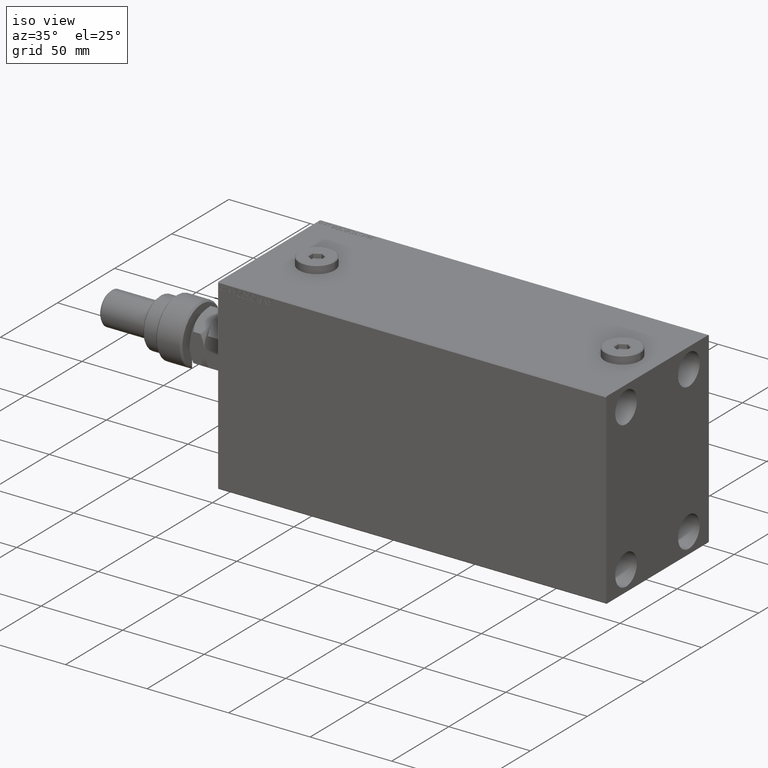
[diagram: clean part render]
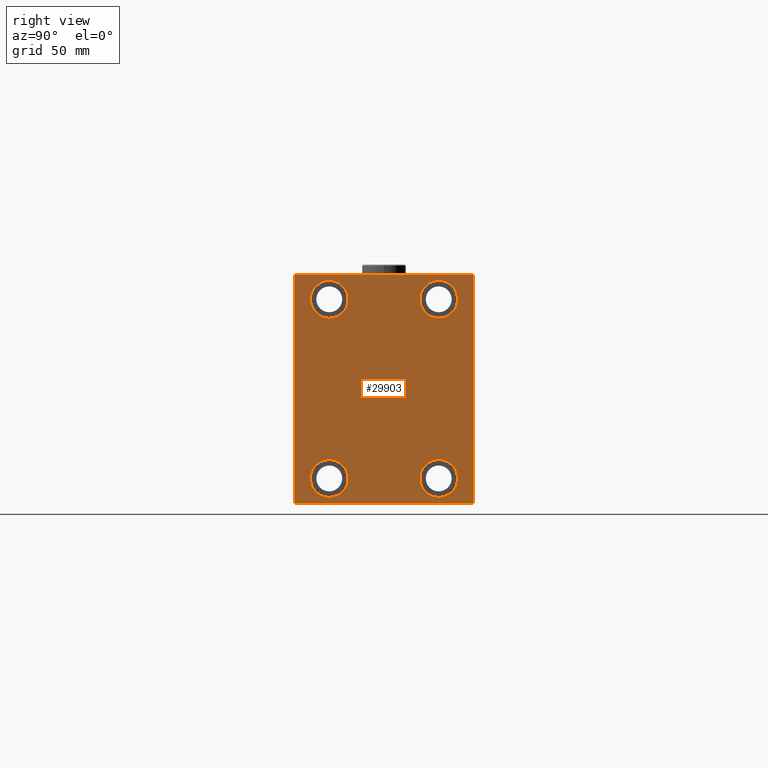
[diagram: tour spotlight — one face highlighted and labeled with its STEP entity id]
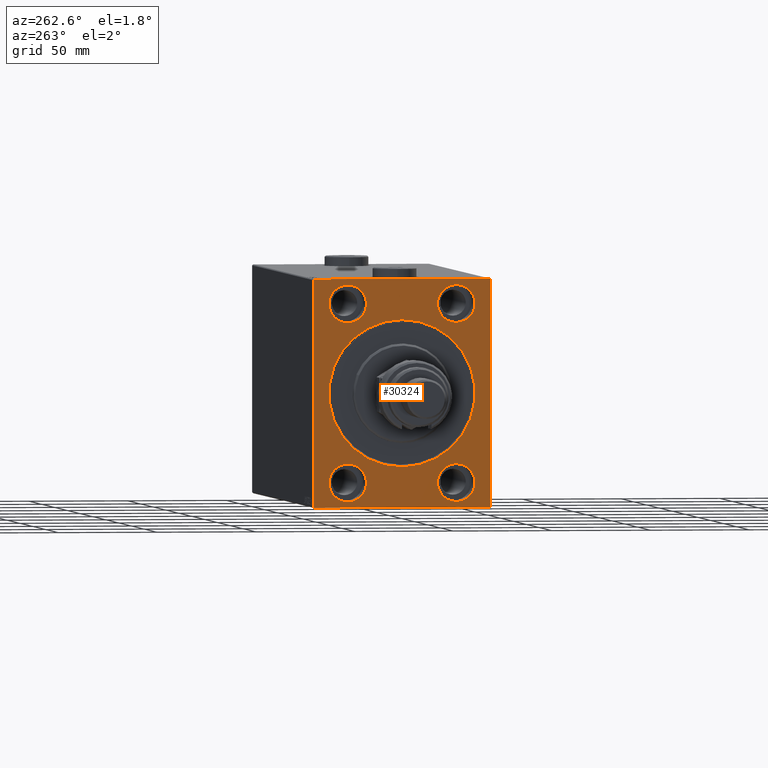
[diagram: tour spotlight — one face highlighted and labeled with its STEP entity id]
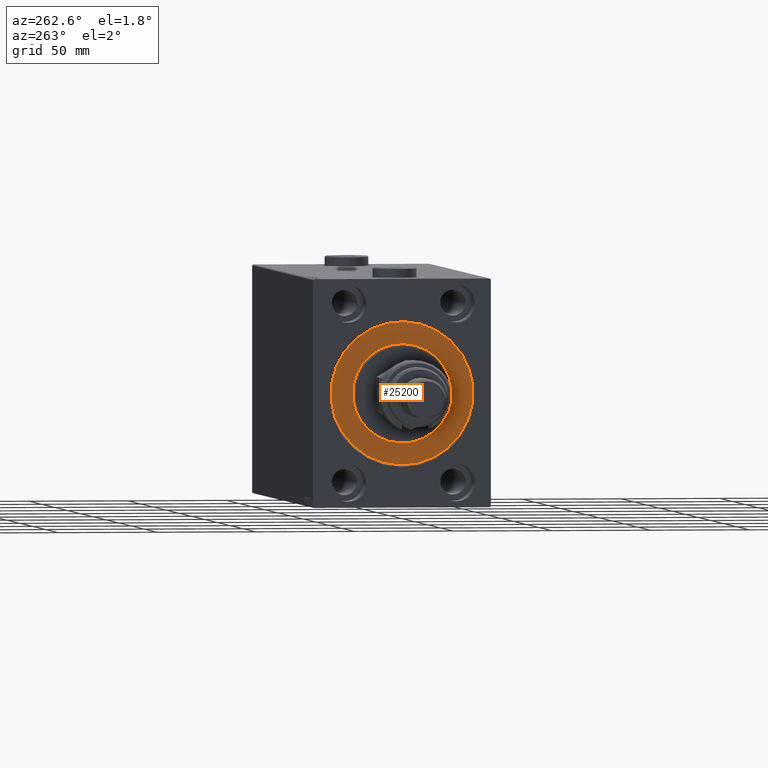
[diagram: tour spotlight — one face highlighted and labeled with its STEP entity id]
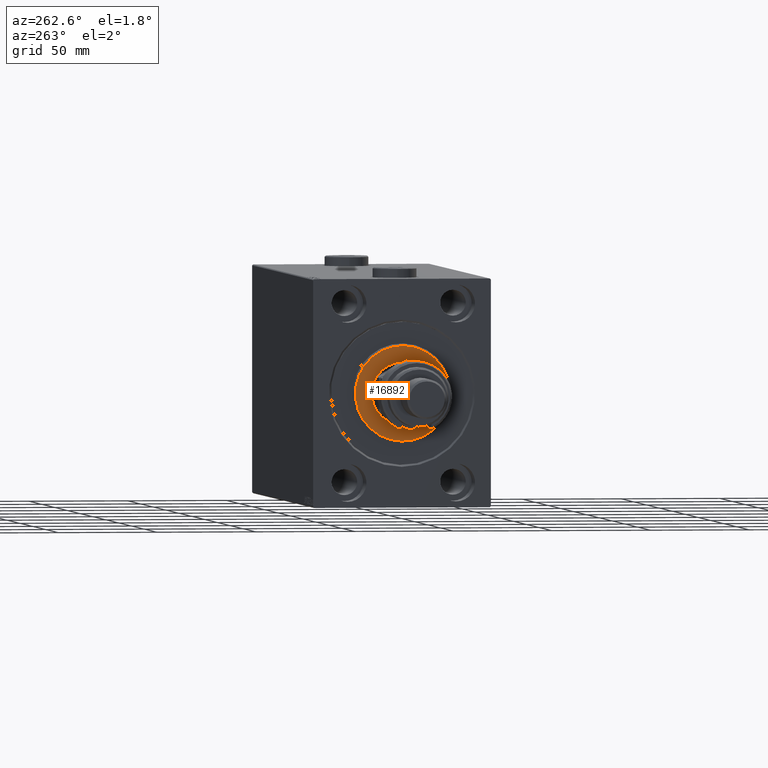
[diagram: tour spotlight — one face highlighted and labeled with its STEP entity id]
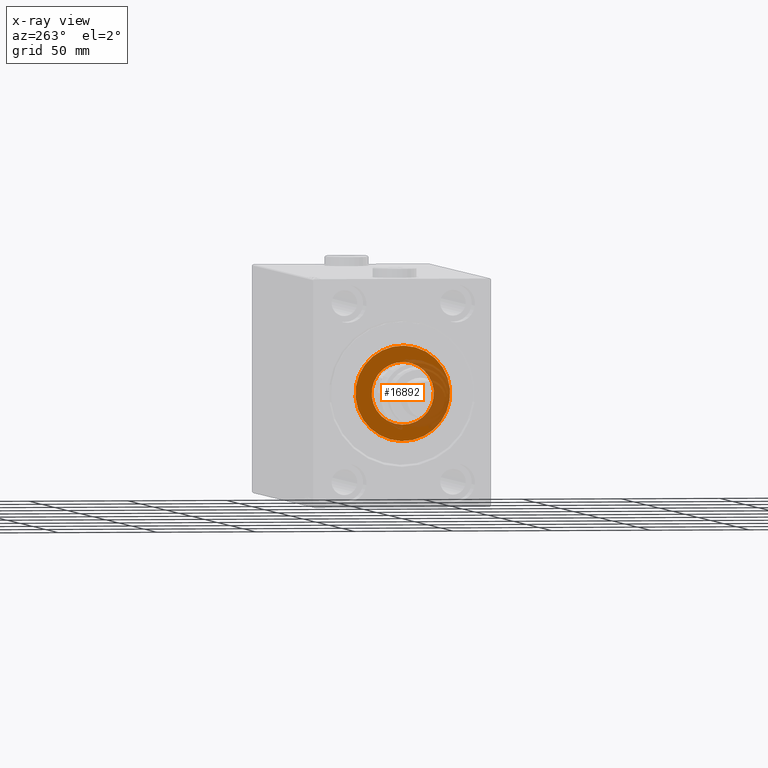
[diagram: x-ray of the same camera — body ghosted, this tour face saturated]
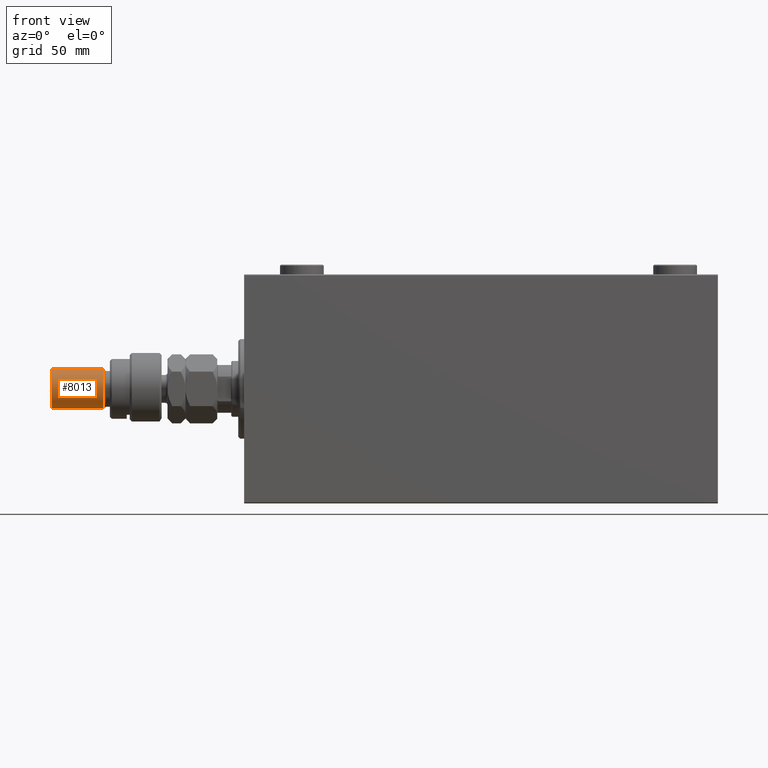
[diagram: tour spotlight — one face highlighted and labeled with its STEP entity id]
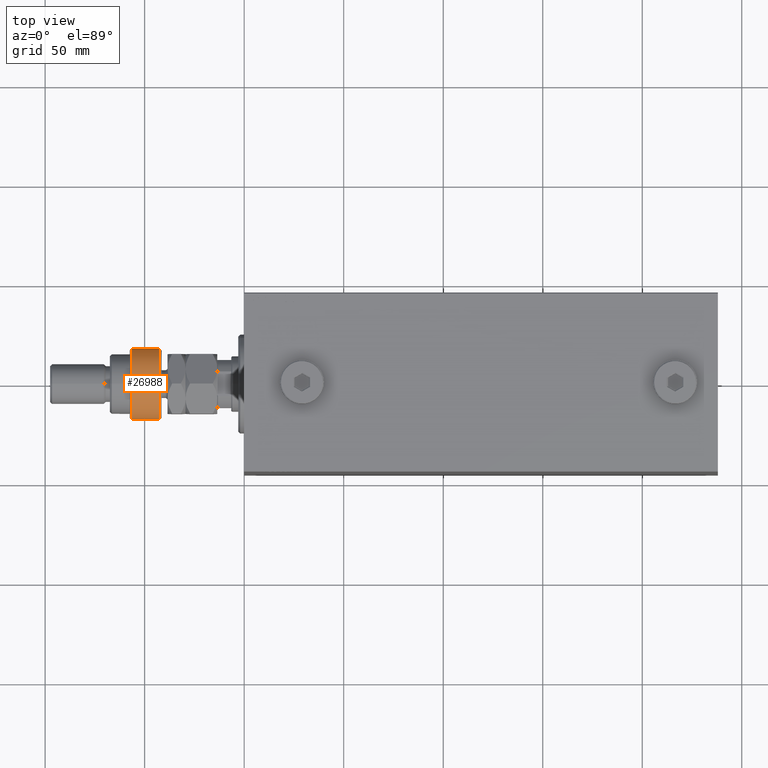
[diagram: tour spotlight — one face highlighted and labeled with its STEP entity id]
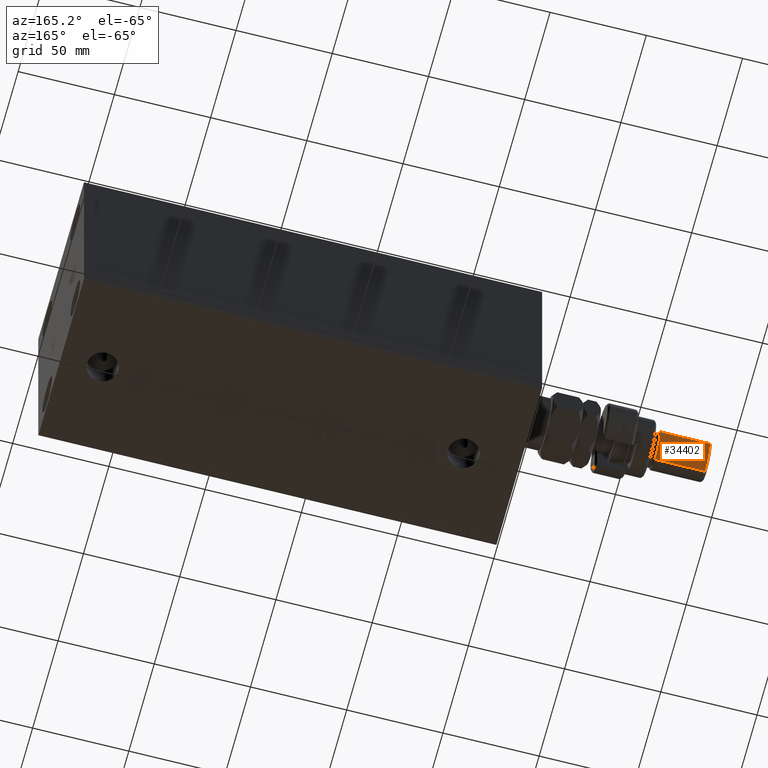
[diagram: tour spotlight — one face highlighted and labeled with its STEP entity id]
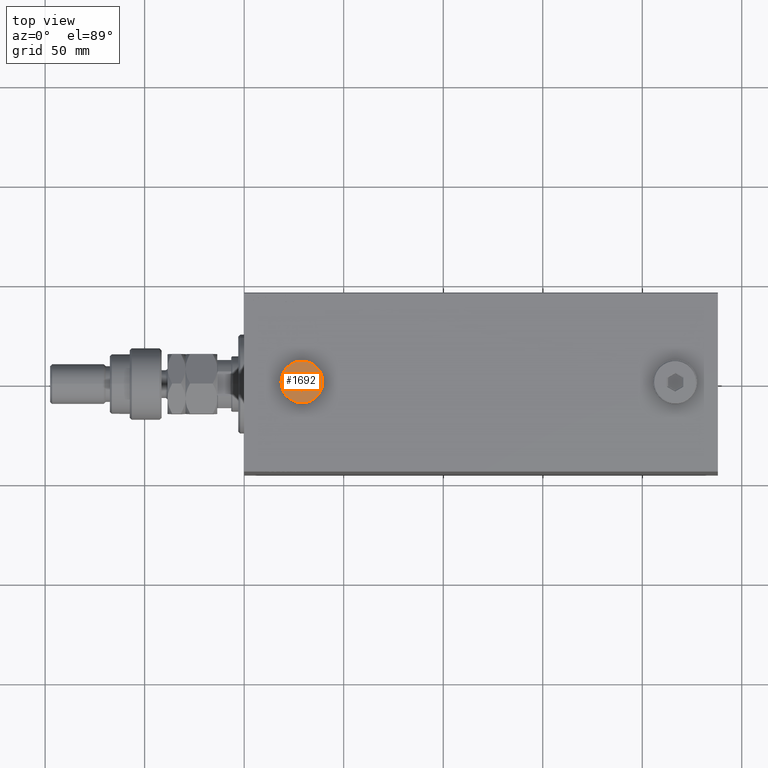
[diagram: tour spotlight — one face highlighted and labeled with its STEP entity id]
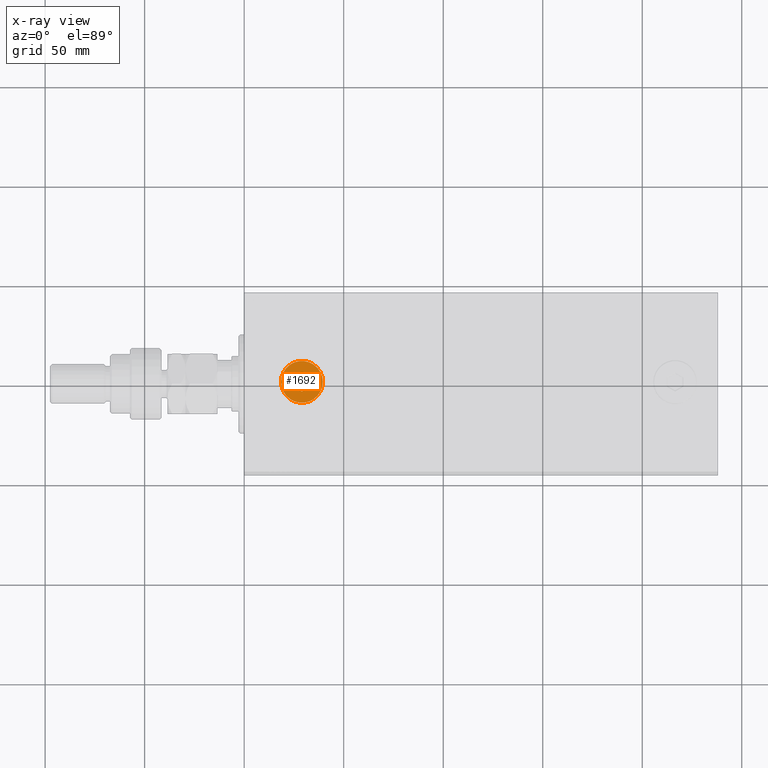
[diagram: x-ray of the same camera — body ghosted, this tour face saturated]
A machine part: a face-by-face anatomy tour. The part has 1004 B-rep faces; the first image is the clean iso view, then the 8 largest visible faces are spotlighted one at a time (largest first), each with its STEP entity span.

Face 1 — right view, entity #29903. In plain terms, the highlighted planar face has unit normal (1, 0, 0).
Definition (entity closure, byte-faithful):
#257 = VECTOR ( 'NONE', #44630, 1000.000000000000114 ) ;
#315 = CARTESIAN_POINT ( 'NONE',  ( 238.0000000000000000, 51.00000000000002842, 51.00000000000002842 ) ) ;
#330 = ORIENTED_EDGE ( 'NONE', *, *, #13280, .T. ) ;
#543 = CIRCLE ( 'NONE', #10648, 9.500000000000001776 ) ;
#624 = VERTEX_POINT ( 'NONE', #44320 ) ;
#719 = FACE_BOUND ( 'NONE', #31853, .T. ) ;
#1183 = CARTESIAN_POINT ( 'NONE',  ( 238.0000000000000000, 27.49999999999998934, -44.99999999999998579 ) ) ;
#1581 = EDGE_CURVE ( 'NONE', #624, #34737, #4622, .T. ) ;
#2472 = DIRECTION ( 'NONE',  ( 0.000000000000000000, 0.000000000000000000, 1.000000000000000000 ) ) ;
#3330 = DIRECTION ( 'NONE',  ( -1.000000000000000000, -0.000000000000000000, -0.000000000000000000 ) ) ;
#3573 = VECTOR ( 'NONE', #19306, 1000.000000000000000 ) ;
#3862 = ORIENTED_EDGE ( 'NONE', *, *, #24793, .T. ) ;
#3907 = DIRECTION ( 'NONE',  ( 0.000000000000000000, 0.000000000000000000, -1.000000000000000000 ) ) ;
#4091 = ORIENTED_EDGE ( 'NONE', *, *, #11251, .T. ) ;
#4205 = CARTESIAN_POINT ( 'NONE',  ( 238.0000000000000000, -50.99999999999874944, 51.00000000000158451 ) ) ;
#4278 = EDGE_CURVE ( 'NONE', #34737, #624, #20249, .T. ) ;
#4622 = CIRCLE ( 'NONE', #12387, 9.500000000000001776 ) ;
#4919 = EDGE_CURVE ( 'NONE', #24583, #8538, #12726, .T. ) ;
#5059 = DIRECTION ( 'NONE',  ( 0.000000000000000000, 0.000000000000000000, -1.000000000000000000 ) ) ;
#5069 = ORIENTED_EDGE ( 'NONE', *, *, #45478, .T. ) ;
#5534 = VERTEX_POINT ( 'NONE', #33707 ) ;
#7001 = CARTESIAN_POINT ( 'NONE',  ( 238.0000000000000000, -27.50000000000000000, -44.99999999999998579 ) ) ;
#7531 = CARTESIAN_POINT ( 'NONE',  ( 238.0000000000000000, -45.00000000000000000, 56.99999999999999289 ) ) ;
#8103 = DIRECTION ( 'NONE',  ( 0.000000000000000000, -0.7071067811865672237, -0.7071067811865279218 ) ) ;
#8272 = EDGE_LOOP ( 'NONE', ( #13595, #46660 ) ) ;
#8538 = VERTEX_POINT ( 'NONE', #41899 ) ;
#10648 = AXIS2_PLACEMENT_3D ( 'NONE', #7001, #18429, #33292 ) ;
#10867 = CARTESIAN_POINT ( 'NONE',  ( 238.0000000000000000, -27.49999999999998934, 45.00000000000000711 ) ) ;
#11251 = EDGE_CURVE ( 'NONE', #47698, #38502, #19694, .T. ) ;
#11429 = VERTEX_POINT ( 'NONE', #7531 ) ;
#11885 = DIRECTION ( 'NONE',  ( -1.000000000000000000, -0.000000000000000000, -0.000000000000000000 ) ) ;
#12339 = VECTOR ( 'NONE', #8103, 1000.000000000000000 ) ;
#12386 = FACE_BOUND ( 'NONE', #41642, .T. ) ;
#12387 = AXIS2_PLACEMENT_3D ( 'NONE', #39647, #20419, #35290 ) ;
#12726 = LINE ( 'NONE', #42926, #44381 ) ;
#13280 = EDGE_CURVE ( 'NONE', #29279, #15631, #36268, .T. ) ;
#13344 = CIRCLE ( 'NONE', #36683, 9.500000000000001776 ) ;
#13595 = ORIENTED_EDGE ( 'NONE', *, *, #1581, .T. ) ;
#13895 = VERTEX_POINT ( 'NONE', #41663 ) ;
#14903 = EDGE_LOOP ( 'NONE', ( #3862, #23812, #25492, #330, #40670, #45634, #18603, #5069 ) ) ;
#15041 = AXIS2_PLACEMENT_3D ( 'NONE', #32755, #28371, #21786 ) ;
#15631 = VERTEX_POINT ( 'NONE', #21185 ) ;
#16796 = VERTEX_POINT ( 'NONE', #32405 ) ;
#17567 = CARTESIAN_POINT ( 'NONE',  ( 238.0000000000000000, 45.00000000000001421, -57.50000000000000711 ) ) ;
#17793 = DIRECTION ( 'NONE',  ( 0.000000000000000000, -1.206764157201257045E-16, 1.000000000000000000 ) ) ;
#18150 = CARTESIAN_POINT ( 'NONE',  ( 238.0000000000000000, 27.50000000000001066, 45.00000000000000711 ) ) ;
#18175 = DIRECTION ( 'NONE',  ( 0.000000000000000000, 0.000000000000000000, 1.000000000000000000 ) ) ;
#18209 = VERTEX_POINT ( 'NONE', #36049 ) ;
#18427 = EDGE_LOOP ( 'NONE', ( #4091, #44683 ) ) ;
#18429 = DIRECTION ( 'NONE',  ( -1.000000000000000000, -0.000000000000000000, -0.000000000000000000 ) ) ;
#18437 = VECTOR ( 'NONE', #31728, 1000.000000000000000 ) ;
#18603 = ORIENTED_EDGE ( 'NONE', *, *, #21049, .T. ) ;
#19306 = DIRECTION ( 'NONE',  ( 0.000000000000000000, 1.000000000000000000, 0.000000000000000000 ) ) ;
#19694 = CIRCLE ( 'NONE', #15041, 9.500000000000001776 ) ;
#20249 = CIRCLE ( 'NONE', #35836, 9.500000000000001776 ) ;
#20419 = DIRECTION ( 'NONE',  ( -1.000000000000000000, -0.000000000000000000, -0.000000000000000000 ) ) ;
#21049 = EDGE_CURVE ( 'NONE', #8538, #23701, #47051, .T. ) ;
#21185 = CARTESIAN_POINT ( 'NONE',  ( 238.0000000000000000, -44.50000000000005684, -57.50000000000000711 ) ) ;
#21268 = ORIENTED_EDGE ( 'NONE', *, *, #41666, .T. ) ;
#21638 = DIRECTION ( 'NONE',  ( -0.000000000000000000, 0.7071067811865474617, -0.7071067811865474617 ) ) ;
#21732 = EDGE_CURVE ( 'NONE', #15631, #24583, #30033, .T. ) ;
#21786 = DIRECTION ( 'NONE',  ( 0.000000000000000000, 0.000000000000000000, 1.000000000000000000 ) ) ;
#22291 = DIRECTION ( 'NONE',  ( -1.000000000000000000, -0.000000000000000000, -0.000000000000000000 ) ) ;
#22402 = CARTESIAN_POINT ( 'NONE',  ( 238.0000000000000000, 0.000000000000000000, 0.000000000000000000 ) ) ;
#23532 = LINE ( 'NONE', #38402, #32622 ) ;
#23669 = EDGE_CURVE ( 'NONE', #38502, #47698, #543, .T. ) ;
#23701 = VERTEX_POINT ( 'NONE', #23759 ) ;
#23759 = CARTESIAN_POINT ( 'NONE',  ( 238.0000000000000000, 45.00000000000000000, 57.00000000000003553 ) ) ;
#23812 = ORIENTED_EDGE ( 'NONE', *, *, #30362, .T. ) ;
#24184 = CARTESIAN_POINT ( 'NONE',  ( 238.0000000000000000, -45.00000000000000000, -57.00000000000006395 ) ) ;
#24583 = VERTEX_POINT ( 'NONE', #40305 ) ;
#24793 = EDGE_CURVE ( 'NONE', #28544, #5534, #43425, .T. ) ;
#25492 = ORIENTED_EDGE ( 'NONE', *, *, #31063, .T. ) ;
#26582 = LINE ( 'NONE', #315, #257 ) ;
#26742 = DIRECTION ( 'NONE',  ( 0.000000000000000000, 0.000000000000000000, 1.000000000000000000 ) ) ;
#27041 = CARTESIAN_POINT ( 'NONE',  ( 238.0000000000000000, 27.50000000000001066, 54.50000000000000711 ) ) ;
#27215 = CIRCLE ( 'NONE', #40475, 9.500000000000001776 ) ;
#28371 = DIRECTION ( 'NONE',  ( -1.000000000000000000, -0.000000000000000000, -0.000000000000000000 ) ) ;
#28434 = ORIENTED_EDGE ( 'NONE', *, *, #38128, .T. ) ;
#28544 = VERTEX_POINT ( 'NONE', #29269 ) ;
#28681 = CARTESIAN_POINT ( 'NONE',  ( 238.0000000000000000, 27.49999999999998934, -44.99999999999998579 ) ) ;
#29269 = CARTESIAN_POINT ( 'NONE',  ( 238.0000000000000000, 44.50000000000005684, 57.50000000000000711 ) ) ;
#29279 = VERTEX_POINT ( 'NONE', #24184 ) ;
#29342 = AXIS2_PLACEMENT_3D ( 'NONE', #22402, #37263, #3907 ) ;
#29903 = ADVANCED_FACE ( 'NONE', ( #12386, #34577, #719, #45762, #40921 ), #41396, .T. ) ;
#30033 = LINE ( 'NONE', #44412, #3573 ) ;
#30362 = EDGE_CURVE ( 'NONE', #5534, #11429, #37564, .T. ) ;
#31063 = EDGE_CURVE ( 'NONE', #11429, #29279, #23532, .T. ) ;
#31728 = DIRECTION ( 'NONE',  ( 0.000000000000000000, -1.000000000000000000, -1.541976423090495387E-16 ) ) ;
#31853 = EDGE_LOOP ( 'NONE', ( #39884, #36806 ) ) ;
#32405 = CARTESIAN_POINT ( 'NONE',  ( 238.0000000000000000, 27.49999999999998934, -54.49999999999998579 ) ) ;
#32465 = EDGE_CURVE ( 'NONE', #18209, #33563, #34991, .T. ) ;
#32622 = VECTOR ( 'NONE', #5059, 1000.000000000000000 ) ;
#32755 = CARTESIAN_POINT ( 'NONE',  ( 238.0000000000000000, -27.50000000000000000, -44.99999999999998579 ) ) ;
#33292 = DIRECTION ( 'NONE',  ( 0.000000000000000000, 0.000000000000000000, 1.000000000000000000 ) ) ;
#33563 = VERTEX_POINT ( 'NONE', #27041 ) ;
#33707 = CARTESIAN_POINT ( 'NONE',  ( 238.0000000000000000, -44.49999999999994316, 57.49999999999999289 ) ) ;
#33749 = VECTOR ( 'NONE', #21638, 1000.000000000000114 ) ;
#34577 = FACE_BOUND ( 'NONE', #8272, .T. ) ;
#34737 = VERTEX_POINT ( 'NONE', #38629 ) ;
#34991 = CIRCLE ( 'NONE', #41972, 9.500000000000001776 ) ;
#35290 = DIRECTION ( 'NONE',  ( 0.000000000000000000, 0.000000000000000000, 1.000000000000000000 ) ) ;
#35637 = CARTESIAN_POINT ( 'NONE',  ( 238.0000000000000000, 45.00000000000000000, 57.50000000000000711 ) ) ;
#35836 = AXIS2_PLACEMENT_3D ( 'NONE', #10867, #3330, #18175 ) ;
#35839 = CARTESIAN_POINT ( 'NONE',  ( 238.0000000000000000, 27.50000000000001066, 45.00000000000000711 ) ) ;
#36049 = CARTESIAN_POINT ( 'NONE',  ( 238.0000000000000000, 27.50000000000001066, 35.50000000000000711 ) ) ;
#36084 = DIRECTION ( 'NONE',  ( -1.000000000000000000, -0.000000000000000000, -0.000000000000000000 ) ) ;
#36268 = LINE ( 'NONE', #43574, #33749 ) ;
#36683 = AXIS2_PLACEMENT_3D ( 'NONE', #28681, #43314, #44035 ) ;
#36806 = ORIENTED_EDGE ( 'NONE', *, *, #42100, .T. ) ;
#37263 = DIRECTION ( 'NONE',  ( 1.000000000000000000, 0.000000000000000000, 0.000000000000000000 ) ) ;
#37564 = LINE ( 'NONE', #4205, #12339 ) ;
#37663 = CARTESIAN_POINT ( 'NONE',  ( 238.0000000000000000, -27.50000000000000000, -35.49999999999998579 ) ) ;
#38128 = EDGE_CURVE ( 'NONE', #13895, #16796, #27215, .T. ) ;
#38402 = CARTESIAN_POINT ( 'NONE',  ( 238.0000000000000000, -45.00000000000000000, 57.49999999999999289 ) ) ;
#38502 = VERTEX_POINT ( 'NONE', #37663 ) ;
#38629 = CARTESIAN_POINT ( 'NONE',  ( 238.0000000000000000, -27.49999999999998934, 54.50000000000000711 ) ) ;
#39037 = CIRCLE ( 'NONE', #40612, 9.500000000000001776 ) ;
#39267 = DIRECTION ( 'NONE',  ( -0.000000000000000000, 0.7071067811865474617, 0.7071067811865474617 ) ) ;
#39647 = CARTESIAN_POINT ( 'NONE',  ( 238.0000000000000000, -27.49999999999998934, 45.00000000000000711 ) ) ;
#39884 = ORIENTED_EDGE ( 'NONE', *, *, #32465, .T. ) ;
#40305 = CARTESIAN_POINT ( 'NONE',  ( 238.0000000000000000, 44.50000000000004263, -57.50000000000000711 ) ) ;
#40475 = AXIS2_PLACEMENT_3D ( 'NONE', #1183, #11885, #26742 ) ;
#40612 = AXIS2_PLACEMENT_3D ( 'NONE', #18150, #22291, #40812 ) ;
#40670 = ORIENTED_EDGE ( 'NONE', *, *, #21732, .T. ) ;
#40812 = DIRECTION ( 'NONE',  ( 0.000000000000000000, 0.000000000000000000, 1.000000000000000000 ) ) ;
#40921 = FACE_OUTER_BOUND ( 'NONE', #14903, .T. ) ;
#41396 = PLANE ( 'NONE',  #29342 ) ;
#41642 = EDGE_LOOP ( 'NONE', ( #21268, #28434 ) ) ;
#41663 = CARTESIAN_POINT ( 'NONE',  ( 238.0000000000000000, 27.49999999999998934, -35.49999999999998579 ) ) ;
#41666 = EDGE_CURVE ( 'NONE', #16796, #13895, #13344, .T. ) ;
#41668 = VECTOR ( 'NONE', #17793, 1000.000000000000000 ) ;
#41899 = CARTESIAN_POINT ( 'NONE',  ( 238.0000000000000000, 45.00000000000001421, -57.00000000000006395 ) ) ;
#41972 = AXIS2_PLACEMENT_3D ( 'NONE', #35839, #36084, #2472 ) ;
#42100 = EDGE_CURVE ( 'NONE', #33563, #18209, #39037, .T. ) ;
#42926 = CARTESIAN_POINT ( 'NONE',  ( 238.0000000000000000, 51.00000000000003553, -51.00000000000003553 ) ) ;
#43314 = DIRECTION ( 'NONE',  ( -1.000000000000000000, -0.000000000000000000, -0.000000000000000000 ) ) ;
#43425 = LINE ( 'NONE', #35637, #18437 ) ;
#43574 = CARTESIAN_POINT ( 'NONE',  ( 238.0000000000000000, -51.00000000000002842, -51.00000000000002842 ) ) ;
#44035 = DIRECTION ( 'NONE',  ( 0.000000000000000000, 0.000000000000000000, 1.000000000000000000 ) ) ;
#44320 = CARTESIAN_POINT ( 'NONE',  ( 238.0000000000000000, -27.49999999999998934, 35.50000000000000711 ) ) ;
#44381 = VECTOR ( 'NONE', #39267, 1000.000000000000114 ) ;
#44412 = CARTESIAN_POINT ( 'NONE',  ( 238.0000000000000000, -45.00000000000000000, -57.50000000000000711 ) ) ;
#44630 = DIRECTION ( 'NONE',  ( -0.000000000000000000, -0.7071067811865474617, 0.7071067811865474617 ) ) ;
#44683 = ORIENTED_EDGE ( 'NONE', *, *, #23669, .T. ) ;
#45478 = EDGE_CURVE ( 'NONE', #23701, #28544, #26582, .T. ) ;
#45634 = ORIENTED_EDGE ( 'NONE', *, *, #4919, .T. ) ;
#45762 = FACE_BOUND ( 'NONE', #18427, .T. ) ;
#45776 = CARTESIAN_POINT ( 'NONE',  ( 238.0000000000000000, -27.50000000000000000, -54.49999999999998579 ) ) ;
#46660 = ORIENTED_EDGE ( 'NONE', *, *, #4278, .T. ) ;
#47051 = LINE ( 'NONE', #17567, #41668 ) ;
#47698 = VERTEX_POINT ( 'NONE', #45776 ) ;

Face 2 — auxiliary view, entity #30324. In plain terms, the highlighted planar face has unit normal (1, 0, 0).
Definition (entity closure, byte-faithful):
#79 = DIRECTION ( 'NONE',  ( 0.000000000000000000, 0.000000000000000000, 1.000000000000000000 ) ) ;
#198 = EDGE_CURVE ( 'NONE', #7597, #10742, #9964, .T. ) ;
#280 = AXIS2_PLACEMENT_3D ( 'NONE', #42903, #20729, #6372 ) ;
#959 = ORIENTED_EDGE ( 'NONE', *, *, #26280, .F. ) ;
#999 = AXIS2_PLACEMENT_3D ( 'NONE', #39152, #24537, #46707 ) ;
#1018 = DIRECTION ( 'NONE',  ( 0.000000000000000000, 0.000000000000000000, 1.000000000000000000 ) ) ;
#1272 = DIRECTION ( 'NONE',  ( 1.000000000000000000, 0.000000000000000000, 0.000000000000000000 ) ) ;
#1620 = AXIS2_PLACEMENT_3D ( 'NONE', #2906, #17981, #14343 ) ;
#1621 = ORIENTED_EDGE ( 'NONE', *, *, #24882, .F. ) ;
#2141 = VERTEX_POINT ( 'NONE', #22232 ) ;
#2259 = VERTEX_POINT ( 'NONE', #7869 ) ;
#2619 = EDGE_CURVE ( 'NONE', #33378, #2141, #15817, .T. ) ;
#2906 = CARTESIAN_POINT ( 'NONE',  ( 0.000000000000000000, -27.49999999999998934, 45.00000000000000711 ) ) ;
#3053 = EDGE_LOOP ( 'NONE', ( #24075, #25568 ) ) ;
#3200 = CARTESIAN_POINT ( 'NONE',  ( 0.000000000000000000, -45.00000000000000000, 56.99999999999999289 ) ) ;
#3284 = CARTESIAN_POINT ( 'NONE',  ( 0.000000000000000000, 27.49999999999998934, -54.49999999999998579 ) ) ;
#3421 = DIRECTION ( 'NONE',  ( -1.000000000000000000, 0.000000000000000000, 0.000000000000000000 ) ) ;
#3719 = DIRECTION ( 'NONE',  ( 0.000000000000000000, 0.000000000000000000, 1.000000000000000000 ) ) ;
#4443 = CARTESIAN_POINT ( 'NONE',  ( 0.000000000000000000, 0.000000000000000000, 0.000000000000000000 ) ) ;
#4682 = FACE_OUTER_BOUND ( 'NONE', #35438, .T. ) ;
#4861 = DIRECTION ( 'NONE',  ( 0.000000000000000000, 0.000000000000000000, -1.000000000000000000 ) ) ;
#4900 = VECTOR ( 'NONE', #37903, 1000.000000000000114 ) ;
#5282 = VECTOR ( 'NONE', #6446, 1000.000000000000000 ) ;
#5698 = CIRCLE ( 'NONE', #32907, 37.00000000000000711 ) ;
#6372 = DIRECTION ( 'NONE',  ( 0.000000000000000000, 0.000000000000000000, 1.000000000000000000 ) ) ;
#6446 = DIRECTION ( 'NONE',  ( 0.000000000000000000, -1.206764157201257045E-16, 1.000000000000000000 ) ) ;
#6467 = CIRCLE ( 'NONE', #999, 9.500000000000001776 ) ;
#6658 = EDGE_CURVE ( 'NONE', #33378, #10742, #43793, .T. ) ;
#6738 = VECTOR ( 'NONE', #37953, 1000.000000000000000 ) ;
#7398 = DIRECTION ( 'NONE',  ( -1.000000000000000000, 0.000000000000000000, 0.000000000000000000 ) ) ;
#7597 = VERTEX_POINT ( 'NONE', #44102 ) ;
#7869 = CARTESIAN_POINT ( 'NONE',  ( 0.000000000000000000, -27.50000000000000000, -35.49999999999998579 ) ) ;
#8601 = CIRCLE ( 'NONE', #1620, 9.500000000000001776 ) ;
#8812 = FACE_BOUND ( 'NONE', #21439, .T. ) ;
#9382 = ORIENTED_EDGE ( 'NONE', *, *, #22395, .F. ) ;
#9964 = LINE ( 'NONE', #21397, #29181 ) ;
#10072 = VECTOR ( 'NONE', #12162, 1000.000000000000000 ) ;
#10738 = CARTESIAN_POINT ( 'NONE',  ( 0.000000000000000000, 27.50000000000001066, 54.50000000000000711 ) ) ;
#10742 = VERTEX_POINT ( 'NONE', #25797 ) ;
#10899 = EDGE_CURVE ( 'NONE', #2259, #41597, #6467, .T. ) ;
#11069 = ORIENTED_EDGE ( 'NONE', *, *, #22582, .T. ) ;
#11105 = EDGE_CURVE ( 'NONE', #7597, #14127, #15022, .T. ) ;
#11361 = CARTESIAN_POINT ( 'NONE',  ( 0.000000000000000000, 44.50000000000005684, 57.50000000000000711 ) ) ;
#11913 = DIRECTION ( 'NONE',  ( 1.000000000000000000, 0.000000000000000000, 0.000000000000000000 ) ) ;
#12012 = EDGE_CURVE ( 'NONE', #18795, #41741, #42265, .T. ) ;
#12074 = EDGE_CURVE ( 'NONE', #15337, #34385, #5698, .T. ) ;
#12162 = DIRECTION ( 'NONE',  ( 0.000000000000000000, 0.000000000000000000, -1.000000000000000000 ) ) ;
#12979 = VERTEX_POINT ( 'NONE', #10738 ) ;
#13248 = DIRECTION ( 'NONE',  ( 0.000000000000000000, 0.000000000000000000, 1.000000000000000000 ) ) ;
#13974 = LINE ( 'NONE', #40520, #5282 ) ;
#14080 = DIRECTION ( 'NONE',  ( -0.000000000000000000, 0.7071067811865672237, 0.7071067811865279218 ) ) ;
#14127 = VERTEX_POINT ( 'NONE', #43821 ) ;
#14212 = CARTESIAN_POINT ( 'NONE',  ( 0.000000000000000000, -27.50000000000000000, -54.49999999999998579 ) ) ;
#14244 = LINE ( 'NONE', #33239, #43926 ) ;
#14343 = DIRECTION ( 'NONE',  ( 0.000000000000000000, 0.000000000000000000, 1.000000000000000000 ) ) ;
#14628 = CARTESIAN_POINT ( 'NONE',  ( 0.000000000000000000, -27.49999999999998934, 54.50000000000000711 ) ) ;
#14833 = CARTESIAN_POINT ( 'NONE',  ( 0.000000000000000000, -45.00000000000000000, -57.50000000000000711 ) ) ;
#15022 = LINE ( 'NONE', #11361, #4900 ) ;
#15337 = VERTEX_POINT ( 'NONE', #32998 ) ;
#15817 = LINE ( 'NONE', #33861, #10072 ) ;
#16113 = FACE_BOUND ( 'NONE', #21534, .T. ) ;
#16357 = ORIENTED_EDGE ( 'NONE', *, *, #12074, .T. ) ;
#16515 = ORIENTED_EDGE ( 'NONE', *, *, #29830, .T. ) ;
#16580 = CIRCLE ( 'NONE', #43802, 9.500000000000001776 ) ;
#16638 = ORIENTED_EDGE ( 'NONE', *, *, #39281, .F. ) ;
#16702 = EDGE_CURVE ( 'NONE', #41597, #2259, #42332, .T. ) ;
#16895 = CIRCLE ( 'NONE', #28572, 37.00000000000000711 ) ;
#16905 = CARTESIAN_POINT ( 'NONE',  ( 0.000000000000000000, -27.49999999999998934, 45.00000000000000711 ) ) ;
#17725 = CARTESIAN_POINT ( 'NONE',  ( 0.000000000000000000, -45.00000000000000000, 56.99999999999999289 ) ) ;
#17784 = DIRECTION ( 'NONE',  ( 0.000000000000000000, 0.000000000000000000, -1.000000000000000000 ) ) ;
#17981 = DIRECTION ( 'NONE',  ( -1.000000000000000000, 0.000000000000000000, 0.000000000000000000 ) ) ;
#18483 = LINE ( 'NONE', #14833, #6738 ) ;
#18560 = ORIENTED_EDGE ( 'NONE', *, *, #12012, .F. ) ;
#18795 = VERTEX_POINT ( 'NONE', #3284 ) ;
#19520 = PLANE ( 'NONE',  #31015 ) ;
#19623 = EDGE_CURVE ( 'NONE', #46981, #2141, #14244, .T. ) ;
#19859 = CARTESIAN_POINT ( 'NONE',  ( 0.000000000000000000, 45.00000000000001421, -57.00000000000006395 ) ) ;
#20729 = DIRECTION ( 'NONE',  ( -1.000000000000000000, 0.000000000000000000, 0.000000000000000000 ) ) ;
#20792 = CIRCLE ( 'NONE', #38672, 9.500000000000001776 ) ;
#20866 = LINE ( 'NONE', #39620, #37842 ) ;
#21194 = DIRECTION ( 'NONE',  ( 0.000000000000000000, 0.000000000000000000, 1.000000000000000000 ) ) ;
#21397 = CARTESIAN_POINT ( 'NONE',  ( 0.000000000000000000, 45.00000000000000000, 57.50000000000000711 ) ) ;
#21439 = EDGE_LOOP ( 'NONE', ( #43852, #1621 ) ) ;
#21534 = EDGE_LOOP ( 'NONE', ( #24982, #18560 ) ) ;
#21587 = CIRCLE ( 'NONE', #41801, 9.500000000000001776 ) ;
#21932 = AXIS2_PLACEMENT_3D ( 'NONE', #16905, #31761, #13248 ) ;
#22092 = AXIS2_PLACEMENT_3D ( 'NONE', #27778, #46316, #1018 ) ;
#22232 = CARTESIAN_POINT ( 'NONE',  ( 0.000000000000000000, -45.00000000000000000, -57.00000000000006395 ) ) ;
#22395 = EDGE_CURVE ( 'NONE', #46981, #28855, #18483, .T. ) ;
#22547 = ORIENTED_EDGE ( 'NONE', *, *, #6658, .T. ) ;
#22582 = EDGE_CURVE ( 'NONE', #40510, #28855, #20866, .T. ) ;
#23506 = CARTESIAN_POINT ( 'NONE',  ( 0.000000000000000000, -27.49999999999998934, 35.50000000000000711 ) ) ;
#24075 = ORIENTED_EDGE ( 'NONE', *, *, #10899, .F. ) ;
#24327 = DIRECTION ( 'NONE',  ( 0.000000000000000000, -1.000000000000000000, -1.541976423090495387E-16 ) ) ;
#24537 = DIRECTION ( 'NONE',  ( -1.000000000000000000, 0.000000000000000000, 0.000000000000000000 ) ) ;
#24882 = EDGE_CURVE ( 'NONE', #31773, #12979, #20792, .T. ) ;
#24982 = ORIENTED_EDGE ( 'NONE', *, *, #46267, .F. ) ;
#25568 = ORIENTED_EDGE ( 'NONE', *, *, #16702, .F. ) ;
#25797 = CARTESIAN_POINT ( 'NONE',  ( 0.000000000000000000, -44.49999999999994316, 57.49999999999999289 ) ) ;
#25816 = CARTESIAN_POINT ( 'NONE',  ( 0.000000000000000000, 27.50000000000001066, 35.50000000000000711 ) ) ;
#26003 = CARTESIAN_POINT ( 'NONE',  ( 0.000000000000000000, 27.49999999999998934, -35.49999999999998579 ) ) ;
#26280 = EDGE_CURVE ( 'NONE', #40510, #14127, #13974, .T. ) ;
#27547 = FACE_BOUND ( 'NONE', #46521, .T. ) ;
#27778 = CARTESIAN_POINT ( 'NONE',  ( 0.000000000000000000, -27.50000000000000000, -44.99999999999998579 ) ) ;
#28274 = CARTESIAN_POINT ( 'NONE',  ( 0.000000000000000000, 0.000000000000000000, 0.000000000000000000 ) ) ;
#28572 = AXIS2_PLACEMENT_3D ( 'NONE', #38215, #11913, #4861 ) ;
#28651 = DIRECTION ( 'NONE',  ( 0.000000000000000000, -0.7071067811865474617, -0.7071067811865474617 ) ) ;
#28855 = VERTEX_POINT ( 'NONE', #45942 ) ;
#28856 = DIRECTION ( 'NONE',  ( -0.000000000000000000, -0.7071067811865474617, 0.7071067811865474617 ) ) ;
#28869 = VECTOR ( 'NONE', #14080, 1000.000000000000000 ) ;
#29181 = VECTOR ( 'NONE', #24327, 1000.000000000000000 ) ;
#29511 = CARTESIAN_POINT ( 'NONE',  ( 0.000000000000000000, 27.50000000000001066, 45.00000000000000711 ) ) ;
#29705 = EDGE_CURVE ( 'NONE', #12979, #31773, #21587, .T. ) ;
#29830 = EDGE_CURVE ( 'NONE', #34385, #15337, #16895, .T. ) ;
#30231 = FACE_BOUND ( 'NONE', #34806, .T. ) ;
#30324 = ADVANCED_FACE ( 'NONE', ( #30231, #16113, #27547, #8812, #38032, #4682 ), #19520, .F. ) ;
#30474 = DIRECTION ( 'NONE',  ( 0.000000000000000000, 0.000000000000000000, -1.000000000000000000 ) ) ;
#31015 = AXIS2_PLACEMENT_3D ( 'NONE', #4443, #1272, #30474 ) ;
#31761 = DIRECTION ( 'NONE',  ( -1.000000000000000000, 0.000000000000000000, 0.000000000000000000 ) ) ;
#31773 = VERTEX_POINT ( 'NONE', #25816 ) ;
#32021 = ORIENTED_EDGE ( 'NONE', *, *, #42948, .F. ) ;
#32907 = AXIS2_PLACEMENT_3D ( 'NONE', #28274, #43150, #17784 ) ;
#32936 = DIRECTION ( 'NONE',  ( -1.000000000000000000, 0.000000000000000000, 0.000000000000000000 ) ) ;
#32998 = CARTESIAN_POINT ( 'NONE',  ( 0.000000000000000000, 0.000000000000000000, 37.00000000000000711 ) ) ;
#33239 = CARTESIAN_POINT ( 'NONE',  ( 0.000000000000000000, -44.50000000000005684, -57.50000000000000711 ) ) ;
#33369 = CARTESIAN_POINT ( 'NONE',  ( 0.000000000000000000, 27.50000000000001066, 45.00000000000000711 ) ) ;
#33378 = VERTEX_POINT ( 'NONE', #3200 ) ;
#33861 = CARTESIAN_POINT ( 'NONE',  ( 0.000000000000000000, -45.00000000000000000, 57.49999999999999289 ) ) ;
#34385 = VERTEX_POINT ( 'NONE', #44556 ) ;
#34806 = EDGE_LOOP ( 'NONE', ( #16357, #16515 ) ) ;
#34959 = ORIENTED_EDGE ( 'NONE', *, *, #198, .F. ) ;
#35356 = ORIENTED_EDGE ( 'NONE', *, *, #11105, .T. ) ;
#35438 = EDGE_LOOP ( 'NONE', ( #40553, #22547, #34959, #35356, #959, #11069, #9382, #38727 ) ) ;
#36714 = CIRCLE ( 'NONE', #21932, 9.500000000000001776 ) ;
#37842 = VECTOR ( 'NONE', #28651, 1000.000000000000114 ) ;
#37903 = DIRECTION ( 'NONE',  ( -0.000000000000000000, 0.7071067811865474617, -0.7071067811865474617 ) ) ;
#37953 = DIRECTION ( 'NONE',  ( 0.000000000000000000, 1.000000000000000000, 0.000000000000000000 ) ) ;
#38032 = FACE_BOUND ( 'NONE', #3053, .T. ) ;
#38215 = CARTESIAN_POINT ( 'NONE',  ( 0.000000000000000000, 0.000000000000000000, 0.000000000000000000 ) ) ;
#38672 = AXIS2_PLACEMENT_3D ( 'NONE', #29511, #32936, #3719 ) ;
#38727 = ORIENTED_EDGE ( 'NONE', *, *, #19623, .T. ) ;
#39152 = CARTESIAN_POINT ( 'NONE',  ( 0.000000000000000000, -27.50000000000000000, -44.99999999999998579 ) ) ;
#39281 = EDGE_CURVE ( 'NONE', #47556, #40627, #8601, .T. ) ;
#39620 = CARTESIAN_POINT ( 'NONE',  ( 0.000000000000000000, 45.00000000000001421, -57.00000000000006395 ) ) ;
#40510 = VERTEX_POINT ( 'NONE', #19859 ) ;
#40520 = CARTESIAN_POINT ( 'NONE',  ( 0.000000000000000000, 45.00000000000001421, -57.50000000000000711 ) ) ;
#40553 = ORIENTED_EDGE ( 'NONE', *, *, #2619, .F. ) ;
#40627 = VERTEX_POINT ( 'NONE', #23506 ) ;
#41597 = VERTEX_POINT ( 'NONE', #14212 ) ;
#41741 = VERTEX_POINT ( 'NONE', #26003 ) ;
#41801 = AXIS2_PLACEMENT_3D ( 'NONE', #33369, #3421, #21194 ) ;
#42265 = CIRCLE ( 'NONE', #280, 9.500000000000001776 ) ;
#42332 = CIRCLE ( 'NONE', #22092, 9.500000000000001776 ) ;
#42903 = CARTESIAN_POINT ( 'NONE',  ( 0.000000000000000000, 27.49999999999998934, -44.99999999999998579 ) ) ;
#42948 = EDGE_CURVE ( 'NONE', #40627, #47556, #36714, .T. ) ;
#43150 = DIRECTION ( 'NONE',  ( 1.000000000000000000, 0.000000000000000000, 0.000000000000000000 ) ) ;
#43793 = LINE ( 'NONE', #17725, #28869 ) ;
#43802 = AXIS2_PLACEMENT_3D ( 'NONE', #44151, #7398, #79 ) ;
#43821 = CARTESIAN_POINT ( 'NONE',  ( 0.000000000000000000, 45.00000000000000000, 57.00000000000003553 ) ) ;
#43852 = ORIENTED_EDGE ( 'NONE', *, *, #29705, .F. ) ;
#43926 = VECTOR ( 'NONE', #28856, 1000.000000000000114 ) ;
#44102 = CARTESIAN_POINT ( 'NONE',  ( 0.000000000000000000, 44.50000000000005684, 57.50000000000000711 ) ) ;
#44151 = CARTESIAN_POINT ( 'NONE',  ( 0.000000000000000000, 27.49999999999998934, -44.99999999999998579 ) ) ;
#44556 = CARTESIAN_POINT ( 'NONE',  ( 0.000000000000000000, 4.531193156845207581E-15, -37.00000000000000711 ) ) ;
#45942 = CARTESIAN_POINT ( 'NONE',  ( 0.000000000000000000, 44.50000000000004263, -57.50000000000000711 ) ) ;
#46267 = EDGE_CURVE ( 'NONE', #41741, #18795, #16580, .T. ) ;
#46316 = DIRECTION ( 'NONE',  ( -1.000000000000000000, 0.000000000000000000, 0.000000000000000000 ) ) ;
#46521 = EDGE_LOOP ( 'NONE', ( #16638, #32021 ) ) ;
#46618 = CARTESIAN_POINT ( 'NONE',  ( 0.000000000000000000, -44.50000000000005684, -57.50000000000000711 ) ) ;
#46707 = DIRECTION ( 'NONE',  ( 0.000000000000000000, 0.000000000000000000, 1.000000000000000000 ) ) ;
#46981 = VERTEX_POINT ( 'NONE', #46618 ) ;
#47556 = VERTEX_POINT ( 'NONE', #14628 ) ;

Face 3 — auxiliary view, entity #25200. In plain terms, the highlighted planar face has unit normal (1, 0, -0).
Definition (entity closure, byte-faithful):
#11 = CARTESIAN_POINT ( 'NONE',  ( 0.000000000000000000, 0.000000000000000000, 0.000000000000000000 ) ) ;
#1550 = AXIS2_PLACEMENT_3D ( 'NONE', #37642, #36920, #43984 ) ;
#1650 = ORIENTED_EDGE ( 'NONE', *, *, #12674, .F. ) ;
#2267 = VERTEX_POINT ( 'NONE', #37574 ) ;
#2277 = VERTEX_POINT ( 'NONE', #38281 ) ;
#3661 = FACE_OUTER_BOUND ( 'NONE', #29513, .T. ) ;
#4201 = AXIS2_PLACEMENT_3D ( 'NONE', #7880, #30023, #19540 ) ;
#7310 = AXIS2_PLACEMENT_3D ( 'NONE', #17022, #28947, #28701 ) ;
#7570 = AXIS2_PLACEMENT_3D ( 'NONE', #11, #29702, #25086 ) ;
#7676 = AXIS2_PLACEMENT_3D ( 'NONE', #33176, #36350, #33420 ) ;
#7880 = CARTESIAN_POINT ( 'NONE',  ( 0.000000000000000000, 0.000000000000000000, 0.000000000000000000 ) ) ;
#8787 = ORIENTED_EDGE ( 'NONE', *, *, #36183, .F. ) ;
#8925 = CARTESIAN_POINT ( 'NONE',  ( 0.000000000000000000, 0.000000000000000000, -36.00000000000000000 ) ) ;
#12674 = EDGE_CURVE ( 'NONE', #2277, #24464, #25952, .T. ) ;
#12739 = CIRCLE ( 'NONE', #7310, 36.00000000000000000 ) ;
#13328 = ORIENTED_EDGE ( 'NONE', *, *, #13335, .F. ) ;
#13335 = EDGE_CURVE ( 'NONE', #2267, #15218, #12739, .T. ) ;
#14856 = FACE_BOUND ( 'NONE', #27793, .T. ) ;
#15218 = VERTEX_POINT ( 'NONE', #8925 ) ;
#17022 = CARTESIAN_POINT ( 'NONE',  ( 0.000000000000000000, 0.000000000000000000, 0.000000000000000000 ) ) ;
#18637 = CIRCLE ( 'NONE', #1550, 25.00000000000000000 ) ;
#19540 = DIRECTION ( 'NONE',  ( 0.000000000000000000, 0.000000000000000000, -1.000000000000000000 ) ) ;
#24464 = VERTEX_POINT ( 'NONE', #34017 ) ;
#25086 = DIRECTION ( 'NONE',  ( 0.000000000000000000, 0.000000000000000000, 1.000000000000000000 ) ) ;
#25200 = ADVANCED_FACE ( 'NONE', ( #14856, #3661 ), #32640, .F. ) ;
#25952 = CIRCLE ( 'NONE', #4201, 25.00000000000000000 ) ;
#26703 = ORIENTED_EDGE ( 'NONE', *, *, #28527, .F. ) ;
#27793 = EDGE_LOOP ( 'NONE', ( #1650, #8787 ) ) ;
#28527 = EDGE_CURVE ( 'NONE', #15218, #2267, #43433, .T. ) ;
#28701 = DIRECTION ( 'NONE',  ( 0.000000000000000000, 0.000000000000000000, 1.000000000000000000 ) ) ;
#28947 = DIRECTION ( 'NONE',  ( -1.000000000000000000, 0.000000000000000000, 0.000000000000000000 ) ) ;
#29513 = EDGE_LOOP ( 'NONE', ( #26703, #13328 ) ) ;
#29702 = DIRECTION ( 'NONE',  ( -1.000000000000000000, 0.000000000000000000, 0.000000000000000000 ) ) ;
#30023 = DIRECTION ( 'NONE',  ( 1.000000000000000000, -0.000000000000000000, 0.000000000000000000 ) ) ;
#32640 = PLANE ( 'NONE',  #7570 ) ;
#33176 = CARTESIAN_POINT ( 'NONE',  ( 0.000000000000000000, 0.000000000000000000, 0.000000000000000000 ) ) ;
#33420 = DIRECTION ( 'NONE',  ( 0.000000000000000000, 0.000000000000000000, 1.000000000000000000 ) ) ;
#34017 = CARTESIAN_POINT ( 'NONE',  ( 0.000000000000000000, 3.061616997868383043E-15, -25.00000000000000000 ) ) ;
#36183 = EDGE_CURVE ( 'NONE', #24464, #2277, #18637, .T. ) ;
#36350 = DIRECTION ( 'NONE',  ( -1.000000000000000000, 0.000000000000000000, 0.000000000000000000 ) ) ;
#36920 = DIRECTION ( 'NONE',  ( 1.000000000000000000, -0.000000000000000000, 0.000000000000000000 ) ) ;
#37574 = CARTESIAN_POINT ( 'NONE',  ( 0.000000000000000000, 4.408728476930470856E-15, 36.00000000000000000 ) ) ;
#37642 = CARTESIAN_POINT ( 'NONE',  ( 0.000000000000000000, 0.000000000000000000, 0.000000000000000000 ) ) ;
#38281 = CARTESIAN_POINT ( 'NONE',  ( 0.000000000000000000, 0.000000000000000000, 25.00000000000000000 ) ) ;
#43433 = CIRCLE ( 'NONE', #7676, 36.00000000000000000 ) ;
#43984 = DIRECTION ( 'NONE',  ( 0.000000000000000000, 0.000000000000000000, -1.000000000000000000 ) ) ;

Face 4 — auxiliary view, entity #16892. An x-ray twin of the same camera follows (body ghosted, this face saturated) — the face is partly hidden behind the body. In plain terms, the highlighted planar face has unit normal (-1, 0, 0).
Definition (entity closure, byte-faithful):
#389 = DIRECTION ( 'NONE',  ( -1.000000000000000000, 0.000000000000000000, -0.000000000000000000 ) ) ;
#1713 = DIRECTION ( 'NONE',  ( 1.000000000000000000, -0.000000000000000000, 0.000000000000000000 ) ) ;
#5137 = VERTEX_POINT ( 'NONE', #32140 ) ;
#7033 = EDGE_CURVE ( 'NONE', #5137, #39718, #21115, .T. ) ;
#8402 = CARTESIAN_POINT ( 'NONE',  ( 3.000000000000000000, 0.000000000000000000, 0.000000000000000000 ) ) ;
#8492 = ORIENTED_EDGE ( 'NONE', *, *, #22405, .T. ) ;
#10284 = EDGE_LOOP ( 'NONE', ( #32300, #31850 ) ) ;
#11966 = AXIS2_PLACEMENT_3D ( 'NONE', #46784, #20950, #35823 ) ;
#13634 = VERTEX_POINT ( 'NONE', #28409 ) ;
#14680 = DIRECTION ( 'NONE',  ( 0.000000000000000000, 0.000000000000000000, -1.000000000000000000 ) ) ;
#16892 = ADVANCED_FACE ( 'NONE', ( #26233, #41097 ), #31921, .T. ) ;
#17984 = AXIS2_PLACEMENT_3D ( 'NONE', #8402, #389, #33978 ) ;
#19933 = EDGE_CURVE ( 'NONE', #20882, #13634, #39294, .T. ) ;
#20882 = VERTEX_POINT ( 'NONE', #33925 ) ;
#20950 = DIRECTION ( 'NONE',  ( 1.000000000000000000, -0.000000000000000000, 0.000000000000000000 ) ) ;
#21047 = CARTESIAN_POINT ( 'NONE',  ( 3.000000000000000000, 0.000000000000000000, 15.75000000000000000 ) ) ;
#21115 = CIRCLE ( 'NONE', #17984, 15.75000000000000000 ) ;
#21162 = CARTESIAN_POINT ( 'NONE',  ( 3.000000000000000000, 0.000000000000000000, 0.000000000000000000 ) ) ;
#22405 = EDGE_CURVE ( 'NONE', #39718, #5137, #35520, .T. ) ;
#24581 = DIRECTION ( 'NONE',  ( 0.000000000000000000, 0.000000000000000000, -1.000000000000000000 ) ) ;
#26159 = AXIS2_PLACEMENT_3D ( 'NONE', #42086, #30878, #41371 ) ;
#26233 = FACE_OUTER_BOUND ( 'NONE', #10284, .T. ) ;
#28409 = CARTESIAN_POINT ( 'NONE',  ( 3.000000000000000000, 3.000384657911015469E-15, -24.00000000000000711 ) ) ;
#29050 = DIRECTION ( 'NONE',  ( 1.000000000000000000, -0.000000000000000000, 0.000000000000000000 ) ) ;
#29565 = EDGE_LOOP ( 'NONE', ( #8492, #43745 ) ) ;
#29717 = AXIS2_PLACEMENT_3D ( 'NONE', #21162, #1713, #24581 ) ;
#30013 = CARTESIAN_POINT ( 'NONE',  ( 3.000000000000000000, 0.000000000000000000, 0.000000000000000000 ) ) ;
#30878 = DIRECTION ( 'NONE',  ( -1.000000000000000000, 0.000000000000000000, -0.000000000000000000 ) ) ;
#31291 = CIRCLE ( 'NONE', #29717, 24.00000000000000711 ) ;
#31850 = ORIENTED_EDGE ( 'NONE', *, *, #43549, .T. ) ;
#31921 = PLANE ( 'NONE',  #11966 ) ;
#32140 = CARTESIAN_POINT ( 'NONE',  ( 3.000000000000000000, 1.928818708657080950E-15, -15.75000000000000000 ) ) ;
#32300 = ORIENTED_EDGE ( 'NONE', *, *, #19933, .T. ) ;
#33925 = CARTESIAN_POINT ( 'NONE',  ( 3.000000000000000000, 0.000000000000000000, 24.00000000000000711 ) ) ;
#33978 = DIRECTION ( 'NONE',  ( 0.000000000000000000, 0.000000000000000000, -1.000000000000000000 ) ) ;
#35520 = CIRCLE ( 'NONE', #26159, 15.75000000000000000 ) ;
#35823 = DIRECTION ( 'NONE',  ( 0.000000000000000000, 0.000000000000000000, -1.000000000000000000 ) ) ;
#39294 = CIRCLE ( 'NONE', #41636, 24.00000000000000711 ) ;
#39718 = VERTEX_POINT ( 'NONE', #21047 ) ;
#41097 = FACE_BOUND ( 'NONE', #29565, .T. ) ;
#41371 = DIRECTION ( 'NONE',  ( 0.000000000000000000, 0.000000000000000000, -1.000000000000000000 ) ) ;
#41636 = AXIS2_PLACEMENT_3D ( 'NONE', #30013, #29050, #14680 ) ;
#42086 = CARTESIAN_POINT ( 'NONE',  ( 3.000000000000000000, 0.000000000000000000, 0.000000000000000000 ) ) ;
#43549 = EDGE_CURVE ( 'NONE', #13634, #20882, #31291, .T. ) ;
#43745 = ORIENTED_EDGE ( 'NONE', *, *, #7033, .T. ) ;
#46784 = CARTESIAN_POINT ( 'NONE',  ( 3.000000000000000000, 0.000000000000000000, 0.000000000000000000 ) ) ;

Face 5 — front view, entity #8013. In plain terms, the highlighted cylindrical surface (edge-blend (fillet) strip) has radius 10 mm, axis along (1, -0, -0).
Definition (entity closure, byte-faithful):
#483 = LINE ( 'NONE', #23105, #15825 ) ;
#1936 = CIRCLE ( 'NONE', #8167, 10.00000000000000000 ) ;
#2033 = DIRECTION ( 'NONE',  ( 1.000000000000000000, 0.000000000000000000, 0.000000000000000000 ) ) ;
#2305 = CARTESIAN_POINT ( 'NONE',  ( 0.000000000000000000, 0.000000000000000000, 56.00000000000000711 ) ) ;
#3712 = DIRECTION ( 'NONE',  ( 1.000000000000000000, 0.000000000000000000, 0.000000000000000000 ) ) ;
#4218 = EDGE_LOOP ( 'NONE', ( #32049, #29697, #14289, #45029 ) ) ;
#4621 = EDGE_CURVE ( 'NONE', #8818, #6702, #18363, .T. ) ;
#5077 = AXIS2_PLACEMENT_3D ( 'NONE', #15795, #19687, #3712 ) ;
#5970 = DIRECTION ( 'NONE',  ( -1.000000000000000000, 0.000000000000000000, 0.000000000000000000 ) ) ;
#6702 = VERTEX_POINT ( 'NONE', #26719 ) ;
#8013 = ADVANCED_FACE ( 'NONE', ( #39550 ), #27385, .T. ) ;
#8167 = AXIS2_PLACEMENT_3D ( 'NONE', #31970, #13218, #2033 ) ;
#8818 = VERTEX_POINT ( 'NONE', #38666 ) ;
#11693 = VECTOR ( 'NONE', #33221, 1000.000000000000000 ) ;
#13218 = DIRECTION ( 'NONE',  ( -0.000000000000000000, -0.000000000000000000, 1.000000000000000000 ) ) ;
#13491 = DIRECTION ( 'NONE',  ( -0.000000000000000000, -0.000000000000000000, -1.000000000000000000 ) ) ;
#14289 = ORIENTED_EDGE ( 'NONE', *, *, #4621, .T. ) ;
#15741 = EDGE_CURVE ( 'NONE', #17194, #38916, #483, .T. ) ;
#15795 = CARTESIAN_POINT ( 'NONE',  ( 0.000000000000000000, 0.000000000000000000, 54.99999999999998579 ) ) ;
#15825 = VECTOR ( 'NONE', #37500, 1000.000000000000000 ) ;
#17194 = VERTEX_POINT ( 'NONE', #31002 ) ;
#18363 = LINE ( 'NONE', #21288, #11693 ) ;
#19219 = EDGE_CURVE ( 'NONE', #17194, #8818, #26057, .T. ) ;
#19687 = DIRECTION ( 'NONE',  ( 0.000000000000000000, 0.000000000000000000, -1.000000000000000000 ) ) ;
#19780 = EDGE_CURVE ( 'NONE', #6702, #38916, #1936, .T. ) ;
#21288 = CARTESIAN_POINT ( 'NONE',  ( -10.00000000000000000, 0.000000000000000000, 56.00000000000000711 ) ) ;
#23105 = CARTESIAN_POINT ( 'NONE',  ( 10.00000000000000000, 1.224646799147353256E-15, 56.00000000000000711 ) ) ;
#26057 = CIRCLE ( 'NONE', #5077, 10.00000000000000000 ) ;
#26719 = CARTESIAN_POINT ( 'NONE',  ( -10.00000000000000000, 0.000000000000000000, 29.00000000000000711 ) ) ;
#27385 = CYLINDRICAL_SURFACE ( 'NONE', #28137, 10.00000000000000000 ) ;
#28137 = AXIS2_PLACEMENT_3D ( 'NONE', #2305, #13491, #5970 ) ;
#29697 = ORIENTED_EDGE ( 'NONE', *, *, #19219, .T. ) ;
#31002 = CARTESIAN_POINT ( 'NONE',  ( 10.00000000000000000, 1.224646799147353256E-15, 54.99999999999998579 ) ) ;
#31970 = CARTESIAN_POINT ( 'NONE',  ( 0.000000000000000000, 0.000000000000000000, 29.00000000000000711 ) ) ;
#32049 = ORIENTED_EDGE ( 'NONE', *, *, #15741, .F. ) ;
#33221 = DIRECTION ( 'NONE',  ( -0.000000000000000000, -0.000000000000000000, -1.000000000000000000 ) ) ;
#35609 = CARTESIAN_POINT ( 'NONE',  ( 10.00000000000000000, 1.224646799147353256E-15, 29.00000000000000711 ) ) ;
#37500 = DIRECTION ( 'NONE',  ( -0.000000000000000000, -0.000000000000000000, -1.000000000000000000 ) ) ;
#38666 = CARTESIAN_POINT ( 'NONE',  ( -10.00000000000000000, 0.000000000000000000, 54.99999999999998579 ) ) ;
#38916 = VERTEX_POINT ( 'NONE', #35609 ) ;
#39550 = FACE_OUTER_BOUND ( 'NONE', #4218, .T. ) ;
#45029 = ORIENTED_EDGE ( 'NONE', *, *, #19780, .T. ) ;

Face 6 — top view, entity #26988. In plain terms, the highlighted cylindrical surface (edge-blend (fillet) strip) has radius 18 mm, axis along (1, -0, -0).
Definition (entity closure, byte-faithful):
#4531 = DIRECTION ( 'NONE',  ( -0.000000000000000000, -0.000000000000000000, -1.000000000000000000 ) ) ;
#5980 = EDGE_CURVE ( 'NONE', #18463, #10822, #25742, .T. ) ;
#6138 = VECTOR ( 'NONE', #14078, 1000.000000000000000 ) ;
#6228 = LINE ( 'NONE', #17170, #35387 ) ;
#6800 = DIRECTION ( 'NONE',  ( 1.000000000000000000, 0.000000000000000000, 0.000000000000000000 ) ) ;
#7710 = CYLINDRICAL_SURFACE ( 'NONE', #23952, 18.00000000000000000 ) ;
#8264 = CARTESIAN_POINT ( 'NONE',  ( -16.36306817195357155, -7.500000000000000000, 14.99999999999999645 ) ) ;
#10822 = VERTEX_POINT ( 'NONE', #8264 ) ;
#11254 = EDGE_CURVE ( 'NONE', #27342, #11533, #16599, .T. ) ;
#11533 = VERTEX_POINT ( 'NONE', #32045 ) ;
#12561 = DIRECTION ( 'NONE',  ( -0.000000000000000000, -0.000000000000000000, -1.000000000000000000 ) ) ;
#14078 = DIRECTION ( 'NONE',  ( -0.000000000000000000, -0.000000000000000000, -1.000000000000000000 ) ) ;
#14816 = DIRECTION ( 'NONE',  ( 0.000000000000000000, 0.000000000000000000, -1.000000000000000000 ) ) ;
#16599 = CIRCLE ( 'NONE', #26676, 18.00000000000000000 ) ;
#17170 = CARTESIAN_POINT ( 'NONE',  ( -16.36306817195357155, -7.500000000000000000, 17.50000000000000000 ) ) ;
#17490 = LINE ( 'NONE', #21379, #6138 ) ;
#18463 = VERTEX_POINT ( 'NONE', #43291 ) ;
#18894 = DIRECTION ( 'NONE',  ( -1.000000000000000000, 0.000000000000000000, 0.000000000000000000 ) ) ;
#19502 = EDGE_CURVE ( 'NONE', #10822, #28989, #6228, .T. ) ;
#20367 = ORIENTED_EDGE ( 'NONE', *, *, #5980, .T. ) ;
#20830 = CARTESIAN_POINT ( 'NONE',  ( -16.36306817195357155, -7.500000000000000000, 1.000000000000011324 ) ) ;
#21379 = CARTESIAN_POINT ( 'NONE',  ( -16.36306817195357155, 7.500000000000000000, 17.50000000000000000 ) ) ;
#23328 = ORIENTED_EDGE ( 'NONE', *, *, #19502, .T. ) ;
#23952 = AXIS2_PLACEMENT_3D ( 'NONE', #30562, #4531, #18894 ) ;
#25742 = CIRCLE ( 'NONE', #33549, 18.00000000000000000 ) ;
#25769 = CARTESIAN_POINT ( 'NONE',  ( 0.000000000000000000, 0.000000000000000000, 14.99999999999999645 ) ) ;
#26676 = AXIS2_PLACEMENT_3D ( 'NONE', #36649, #35692, #32513 ) ;
#26988 = ADVANCED_FACE ( 'NONE', ( #34480 ), #7710, .T. ) ;
#27112 = AXIS2_PLACEMENT_3D ( 'NONE', #47208, #47445, #44512 ) ;
#27342 = VERTEX_POINT ( 'NONE', #47067 ) ;
#28989 = VERTEX_POINT ( 'NONE', #20830 ) ;
#30562 = CARTESIAN_POINT ( 'NONE',  ( 0.000000000000000000, 0.000000000000000000, 16.00000000000000000 ) ) ;
#30839 = EDGE_CURVE ( 'NONE', #28989, #27342, #48134, .T. ) ;
#30860 = EDGE_CURVE ( 'NONE', #18463, #11533, #17490, .T. ) ;
#32045 = CARTESIAN_POINT ( 'NONE',  ( -16.36306817195357155, 7.500000000000000000, 1.000000000000011324 ) ) ;
#32513 = DIRECTION ( 'NONE',  ( 1.000000000000000000, 0.000000000000000000, 0.000000000000000000 ) ) ;
#33549 = AXIS2_PLACEMENT_3D ( 'NONE', #25769, #14816, #6800 ) ;
#34480 = FACE_OUTER_BOUND ( 'NONE', #36923, .T. ) ;
#35387 = VECTOR ( 'NONE', #12561, 1000.000000000000000 ) ;
#35692 = DIRECTION ( 'NONE',  ( -0.000000000000000000, -0.000000000000000000, 1.000000000000000000 ) ) ;
#36516 = ORIENTED_EDGE ( 'NONE', *, *, #30839, .T. ) ;
#36649 = CARTESIAN_POINT ( 'NONE',  ( 0.000000000000000000, 0.000000000000000000, 1.000000000000011324 ) ) ;
#36923 = EDGE_LOOP ( 'NONE', ( #44364, #20367, #23328, #36516, #43147 ) ) ;
#43147 = ORIENTED_EDGE ( 'NONE', *, *, #11254, .T. ) ;
#43291 = CARTESIAN_POINT ( 'NONE',  ( -16.36306817195357155, 7.500000000000000000, 14.99999999999999645 ) ) ;
#44364 = ORIENTED_EDGE ( 'NONE', *, *, #30860, .F. ) ;
#44512 = DIRECTION ( 'NONE',  ( 1.000000000000000000, 0.000000000000000000, 0.000000000000000000 ) ) ;
#47067 = CARTESIAN_POINT ( 'NONE',  ( 18.00000000000000000, 0.000000000000000000, 1.000000000000011324 ) ) ;
#47208 = CARTESIAN_POINT ( 'NONE',  ( 0.000000000000000000, 0.000000000000000000, 1.000000000000011324 ) ) ;
#47445 = DIRECTION ( 'NONE',  ( -0.000000000000000000, -0.000000000000000000, 1.000000000000000000 ) ) ;
#48134 = CIRCLE ( 'NONE', #27112, 18.00000000000000000 ) ;

Face 7 — auxiliary view, entity #34402. In plain terms, the highlighted cylindrical surface (edge-blend (fillet) strip) has radius 10 mm, axis along (1, -0, -0).
Definition (entity closure, byte-faithful):
#483 = LINE ( 'NONE', #23105, #15825 ) ;
#3652 = DIRECTION ( 'NONE',  ( -0.000000000000000000, -0.000000000000000000, -1.000000000000000000 ) ) ;
#3909 = CIRCLE ( 'NONE', #45895, 10.00000000000000000 ) ;
#4621 = EDGE_CURVE ( 'NONE', #8818, #6702, #18363, .T. ) ;
#5626 = DIRECTION ( 'NONE',  ( -0.000000000000000000, -0.000000000000000000, 1.000000000000000000 ) ) ;
#6702 = VERTEX_POINT ( 'NONE', #26719 ) ;
#8818 = VERTEX_POINT ( 'NONE', #38666 ) ;
#11189 = DIRECTION ( 'NONE',  ( -1.000000000000000000, 0.000000000000000000, 0.000000000000000000 ) ) ;
#11693 = VECTOR ( 'NONE', #33221, 1000.000000000000000 ) ;
#12911 = DIRECTION ( 'NONE',  ( 1.000000000000000000, 0.000000000000000000, 0.000000000000000000 ) ) ;
#14847 = CYLINDRICAL_SURFACE ( 'NONE', #38143, 10.00000000000000000 ) ;
#15741 = EDGE_CURVE ( 'NONE', #17194, #38916, #483, .T. ) ;
#15825 = VECTOR ( 'NONE', #37500, 1000.000000000000000 ) ;
#17194 = VERTEX_POINT ( 'NONE', #31002 ) ;
#18363 = LINE ( 'NONE', #21288, #11693 ) ;
#19304 = DIRECTION ( 'NONE',  ( 1.000000000000000000, 0.000000000000000000, 0.000000000000000000 ) ) ;
#20068 = ORIENTED_EDGE ( 'NONE', *, *, #4621, .F. ) ;
#20346 = ORIENTED_EDGE ( 'NONE', *, *, #23120, .T. ) ;
#21288 = CARTESIAN_POINT ( 'NONE',  ( -10.00000000000000000, 0.000000000000000000, 56.00000000000000711 ) ) ;
#21815 = EDGE_LOOP ( 'NONE', ( #45024, #31894, #20346, #20068 ) ) ;
#22965 = CARTESIAN_POINT ( 'NONE',  ( 0.000000000000000000, 0.000000000000000000, 54.99999999999998579 ) ) ;
#23105 = CARTESIAN_POINT ( 'NONE',  ( 10.00000000000000000, 1.224646799147353256E-15, 56.00000000000000711 ) ) ;
#23120 = EDGE_CURVE ( 'NONE', #38916, #6702, #37081, .T. ) ;
#26279 = CARTESIAN_POINT ( 'NONE',  ( 0.000000000000000000, 0.000000000000000000, 56.00000000000000711 ) ) ;
#26719 = CARTESIAN_POINT ( 'NONE',  ( -10.00000000000000000, 0.000000000000000000, 29.00000000000000711 ) ) ;
#31002 = CARTESIAN_POINT ( 'NONE',  ( 10.00000000000000000, 1.224646799147353256E-15, 54.99999999999998579 ) ) ;
#31894 = ORIENTED_EDGE ( 'NONE', *, *, #15741, .T. ) ;
#33221 = DIRECTION ( 'NONE',  ( -0.000000000000000000, -0.000000000000000000, -1.000000000000000000 ) ) ;
#34402 = ADVANCED_FACE ( 'NONE', ( #44801 ), #14847, .T. ) ;
#35609 = CARTESIAN_POINT ( 'NONE',  ( 10.00000000000000000, 1.224646799147353256E-15, 29.00000000000000711 ) ) ;
#37081 = CIRCLE ( 'NONE', #40974, 10.00000000000000000 ) ;
#37479 = EDGE_CURVE ( 'NONE', #8818, #17194, #3909, .T. ) ;
#37500 = DIRECTION ( 'NONE',  ( -0.000000000000000000, -0.000000000000000000, -1.000000000000000000 ) ) ;
#37830 = DIRECTION ( 'NONE',  ( 0.000000000000000000, 0.000000000000000000, -1.000000000000000000 ) ) ;
#38143 = AXIS2_PLACEMENT_3D ( 'NONE', #26279, #3652, #11189 ) ;
#38666 = CARTESIAN_POINT ( 'NONE',  ( -10.00000000000000000, 0.000000000000000000, 54.99999999999998579 ) ) ;
#38916 = VERTEX_POINT ( 'NONE', #35609 ) ;
#40974 = AXIS2_PLACEMENT_3D ( 'NONE', #44904, #5626, #12911 ) ;
#44801 = FACE_OUTER_BOUND ( 'NONE', #21815, .T. ) ;
#44904 = CARTESIAN_POINT ( 'NONE',  ( 0.000000000000000000, 0.000000000000000000, 29.00000000000000711 ) ) ;
#45024 = ORIENTED_EDGE ( 'NONE', *, *, #37479, .T. ) ;
#45895 = AXIS2_PLACEMENT_3D ( 'NONE', #22965, #37830, #19304 ) ;

Face 8 — top view, entity #1692. An x-ray twin of the same camera follows (body ghosted, this face saturated) — the face is partly hidden behind the body. In plain terms, the highlighted planar face has unit normal (0, 0, 1).
Definition (entity closure, byte-faithful):
#1283 = CARTESIAN_POINT ( 'NONE',  ( -4.166666666666664298, 2.405626121623439584, 5.000000000000000000 ) ) ;
#1624 = LINE ( 'NONE', #8686, #44127 ) ;
#1692 = ADVANCED_FACE ( 'NONE', ( #23294, #8224 ), #5295, .T. ) ;
#2196 = EDGE_CURVE ( 'NONE', #24452, #47211, #16285, .T. ) ;
#2326 = AXIS2_PLACEMENT_3D ( 'NONE', #40506, #29527, #11030 ) ;
#3557 = CARTESIAN_POINT ( 'NONE',  ( -4.166666666666665186, -2.405626121623437363, 5.000000000000000000 ) ) ;
#3740 = EDGE_CURVE ( 'NONE', #6998, #9625, #10569, .T. ) ;
#4234 = CARTESIAN_POINT ( 'NONE',  ( -8.363929151985410416E-16, -4.811252243246877391, 5.000000000000000000 ) ) ;
#5295 = PLANE ( 'NONE',  #37264 ) ;
#6980 = VERTEX_POINT ( 'NONE', #3557 ) ;
#6998 = VERTEX_POINT ( 'NONE', #32532 ) ;
#7522 = LINE ( 'NONE', #44046, #16144 ) ;
#7841 = VECTOR ( 'NONE', #24032, 1000.000000000000000 ) ;
#8224 = FACE_OUTER_BOUND ( 'NONE', #25864, .T. ) ;
#8686 = CARTESIAN_POINT ( 'NONE',  ( -3.916666666666664742, -2.549963688920843907, 5.000000000000000000 ) ) ;
#9196 = CARTESIAN_POINT ( 'NONE',  ( 3.916666666666664742, 2.549963688920845239, 5.000000000000000000 ) ) ;
#9462 = ORIENTED_EDGE ( 'NONE', *, *, #24098, .T. ) ;
#9625 = VERTEX_POINT ( 'NONE', #4234 ) ;
#9891 = LINE ( 'NONE', #24738, #27455 ) ;
#10569 = LINE ( 'NONE', #43699, #36565 ) ;
#11030 = DIRECTION ( 'NONE',  ( 1.000000000000000000, 0.000000000000000000, 0.000000000000000000 ) ) ;
#11077 = VERTEX_POINT ( 'NONE', #37676 ) ;
#11915 = AXIS2_PLACEMENT_3D ( 'NONE', #25395, #14678, #18085 ) ;
#12968 = VECTOR ( 'NONE', #32691, 1000.000000000000000 ) ;
#14423 = VERTEX_POINT ( 'NONE', #17812 ) ;
#14560 = ORIENTED_EDGE ( 'NONE', *, *, #3740, .T. ) ;
#14678 = DIRECTION ( 'NONE',  ( 0.000000000000000000, 0.000000000000000000, 1.000000000000000000 ) ) ;
#16144 = VECTOR ( 'NONE', #22117, 1000.000000000000114 ) ;
#16285 = CIRCLE ( 'NONE', #2326, 10.50000000000000178 ) ;
#17117 = EDGE_LOOP ( 'NONE', ( #46647, #36305, #44975, #9462, #14560, #27528 ) ) ;
#17387 = ORIENTED_EDGE ( 'NONE', *, *, #2196, .T. ) ;
#17812 = CARTESIAN_POINT ( 'NONE',  ( -6.281144585932674641E-17, 4.811252243246876503, 5.000000000000000000 ) ) ;
#18085 = DIRECTION ( 'NONE',  ( 1.000000000000000000, 0.000000000000000000, 0.000000000000000000 ) ) ;
#19170 = DIRECTION ( 'NONE',  ( 1.000000000000000000, 0.000000000000000000, -0.000000000000000000 ) ) ;
#20103 = DIRECTION ( 'NONE',  ( -0.8660254037844384856, 0.5000000000000002220, 0.000000000000000000 ) ) ;
#22117 = DIRECTION ( 'NONE',  ( 0.8660254037844388186, 0.4999999999999997780, 0.000000000000000000 ) ) ;
#23060 = CARTESIAN_POINT ( 'NONE',  ( 0.000000000000000000, 0.000000000000000000, 5.000000000000000000 ) ) ;
#23294 = FACE_BOUND ( 'NONE', #17117, .T. ) ;
#23529 = DIRECTION ( 'NONE',  ( 0.000000000000000000, 0.000000000000000000, 1.000000000000000000 ) ) ;
#24032 = DIRECTION ( 'NONE',  ( 0.8660254037844387076, -0.4999999999999998335, 0.000000000000000000 ) ) ;
#24098 = EDGE_CURVE ( 'NONE', #11077, #6998, #28789, .T. ) ;
#24448 = EDGE_CURVE ( 'NONE', #9625, #6980, #1624, .T. ) ;
#24452 = VERTEX_POINT ( 'NONE', #46185 ) ;
#24738 = CARTESIAN_POINT ( 'NONE',  ( -4.166666666666664298, 2.116950987028627829, 5.000000000000000000 ) ) ;
#25126 = CIRCLE ( 'NONE', #11915, 10.50000000000000178 ) ;
#25226 = CARTESIAN_POINT ( 'NONE',  ( 10.50000000000000178, 1.316495309083404815E-15, 5.000000000000000000 ) ) ;
#25395 = CARTESIAN_POINT ( 'NONE',  ( 0.000000000000000000, 0.000000000000000000, 5.000000000000000000 ) ) ;
#25712 = EDGE_CURVE ( 'NONE', #42398, #14423, #7522, .T. ) ;
#25864 = EDGE_LOOP ( 'NONE', ( #17387, #36104 ) ) ;
#27208 = LINE ( 'NONE', #9196, #7841 ) ;
#27455 = VECTOR ( 'NONE', #39590, 1000.000000000000000 ) ;
#27528 = ORIENTED_EDGE ( 'NONE', *, *, #24448, .T. ) ;
#28789 = LINE ( 'NONE', #43658, #12968 ) ;
#29527 = DIRECTION ( 'NONE',  ( 0.000000000000000000, 0.000000000000000000, 1.000000000000000000 ) ) ;
#32495 = DIRECTION ( 'NONE',  ( -0.8660254037844387076, -0.4999999999999998335, 0.000000000000000000 ) ) ;
#32532 = CARTESIAN_POINT ( 'NONE',  ( 4.166666666666664298, -2.405626121623439584, 5.000000000000000000 ) ) ;
#32691 = DIRECTION ( 'NONE',  ( 1.024305408229881337E-16, -1.000000000000000000, 0.000000000000000000 ) ) ;
#36104 = ORIENTED_EDGE ( 'NONE', *, *, #46254, .T. ) ;
#36305 = ORIENTED_EDGE ( 'NONE', *, *, #25712, .T. ) ;
#36565 = VECTOR ( 'NONE', #32495, 1000.000000000000000 ) ;
#37264 = AXIS2_PLACEMENT_3D ( 'NONE', #23060, #23529, #19170 ) ;
#37676 = CARTESIAN_POINT ( 'NONE',  ( 4.166666666666663410, 2.405626121623439584, 5.000000000000000000 ) ) ;
#39413 = EDGE_CURVE ( 'NONE', #14423, #11077, #27208, .T. ) ;
#39590 = DIRECTION ( 'NONE',  ( 1.024305408229881337E-16, 1.000000000000000000, 0.000000000000000000 ) ) ;
#40506 = CARTESIAN_POINT ( 'NONE',  ( 0.000000000000000000, 0.000000000000000000, 5.000000000000000000 ) ) ;
#42398 = VERTEX_POINT ( 'NONE', #1283 ) ;
#43658 = CARTESIAN_POINT ( 'NONE',  ( 4.166666666666664298, -2.116950987028627384, 5.000000000000000000 ) ) ;
#43699 = CARTESIAN_POINT ( 'NONE',  ( 0.2499999999999981681, -4.666914675949471736, 5.000000000000000000 ) ) ;
#44046 = CARTESIAN_POINT ( 'NONE',  ( -0.2499999999999992506, 4.666914675949470848, 5.000000000000000000 ) ) ;
#44127 = VECTOR ( 'NONE', #20103, 1000.000000000000000 ) ;
#44975 = ORIENTED_EDGE ( 'NONE', *, *, #39413, .T. ) ;
#45886 = EDGE_CURVE ( 'NONE', #6980, #42398, #9891, .T. ) ;
#46185 = CARTESIAN_POINT ( 'NONE',  ( -10.50000000000000178, 0.000000000000000000, 5.000000000000000000 ) ) ;
#46254 = EDGE_CURVE ( 'NONE', #47211, #24452, #25126, .T. ) ;
#46647 = ORIENTED_EDGE ( 'NONE', *, *, #45886, .T. ) ;
#47211 = VERTEX_POINT ( 'NONE', #25226 ) ;